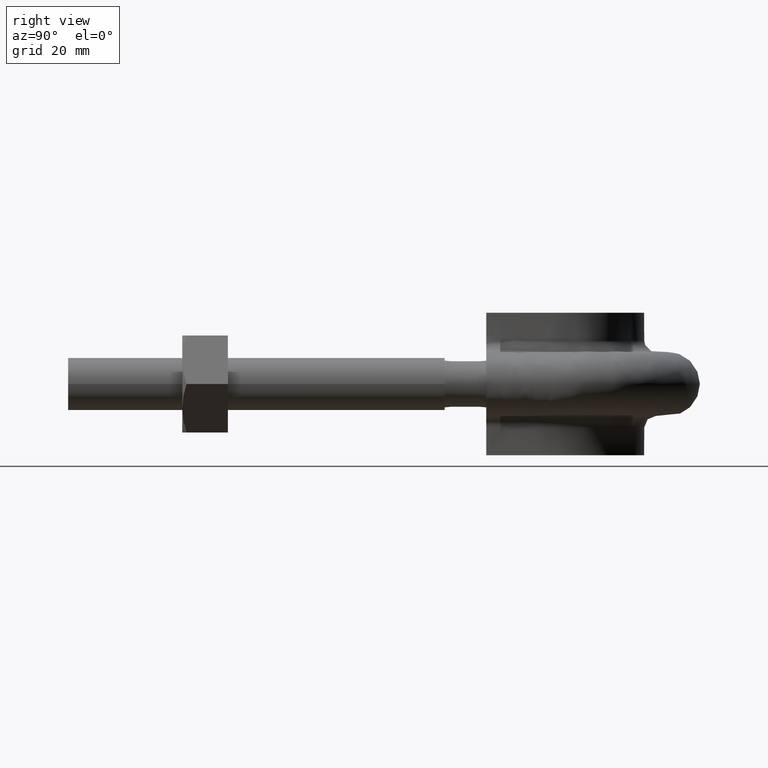
[diagram: clean part render]
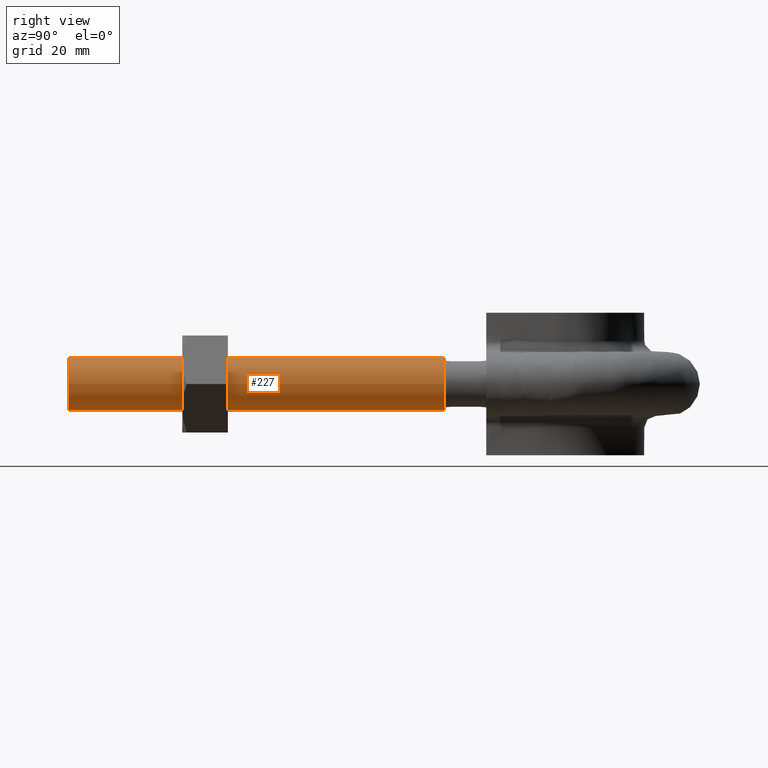
[diagram: same view with one face highlighted and labeled with its STEP entity id]
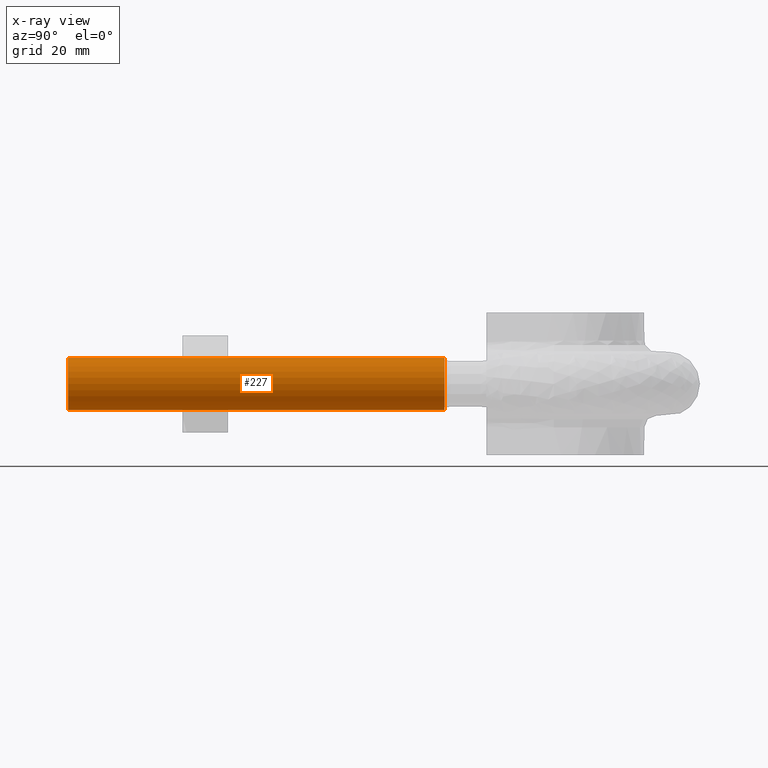
[diagram: x-ray of the same camera — body ghosted, the highlighted face saturated]
A machine part, right view. The second image highlights one B-rep face of the part: STEP entity #227.
The next image is the same camera in x-ray: the body ghosted, the highlighted face saturated — about 0% of this face is hidden behind the body in this view.
In plain terms, the highlighted cylindrical surface (bore or boss wall) has radius 4.6 mm, axis along (-0, -1, -0).
Its self-contained STEP definition (entity closure, byte-faithful):
#227 = ADVANCED_FACE( '', ( #299, #300 ), #301, .T. );
#299 = FACE_OUTER_BOUND( '', #1156, .T. );
#300 = FACE_OUTER_BOUND( '', #1157, .T. );
#301 = CYLINDRICAL_SURFACE( '', #1158, 4.60000000000000 );
#1156 = EDGE_LOOP( '', ( #1348 ) );
#1157 = EDGE_LOOP( '', ( #1349 ) );
#1158 = AXIS2_PLACEMENT_3D( '', #1350, #1351, #1352 );
#1348 = ORIENTED_EDGE( '', *, *, #1750, .F. );
#1349 = ORIENTED_EDGE( '', *, *, #1751, .T. );
#1350 = CARTESIAN_POINT( '', ( 20.0000000000000, 66.0000000000000, 4.04120096761384E-015 ) );
#1351 = DIRECTION( '', ( -4.89842541528951E-016, -1.00000000000000, -6.12303176911189E-017 ) );
#1352 = DIRECTION( '', ( 1.00000000000000, -4.89842541528951E-016, -2.24949108273321E-032 ) );
#1750 = EDGE_CURVE( '', #1885, #1885, #1886, .T. );
#1751 = EDGE_CURVE( '', #1887, #1887, #1888, .T. );
#1885 = VERTEX_POINT( '', #2254 );
#1886 = CIRCLE( '', #2255, 4.60000000000000 );
#1887 = VERTEX_POINT( '', #2256 );
#1888 = CIRCLE( '', #2257, 4.60000000000000 );
#2254 = CARTESIAN_POINT( '', ( 24.6000000000000, -1.20501265216122E-014, -5.53374806352369E-031 ) );
#2255 = AXIS2_PLACEMENT_3D( '', #2607, #2608, #2609 );
#2256 = CARTESIAN_POINT( '', ( 24.6000000000000, 66.0000000000000, 4.04120096761384E-015 ) );
#2257 = AXIS2_PLACEMENT_3D( '', #2610, #2611, #2612 );
#2607 = CARTESIAN_POINT( '', ( 20.0000000000000, -9.79685083057902E-015, -4.49898216546641E-031 ) );
#2608 = DIRECTION( '', ( -4.89842541528951E-016, -1.00000000000000, -6.12303176911189E-017 ) );
#2609 = DIRECTION( '', ( 1.00000000000000, -4.89842541528951E-016, -2.24949108273321E-032 ) );
#2610 = CARTESIAN_POINT( '', ( 20.0000000000000, 66.0000000000000, 4.04120096761384E-015 ) );
#2611 = DIRECTION( '', ( -4.89842541528951E-016, -1.00000000000000, -6.12303176911189E-017 ) );
#2612 = DIRECTION( '', ( 1.00000000000000, -4.89842541528951E-016, -2.24949108273321E-032 ) );